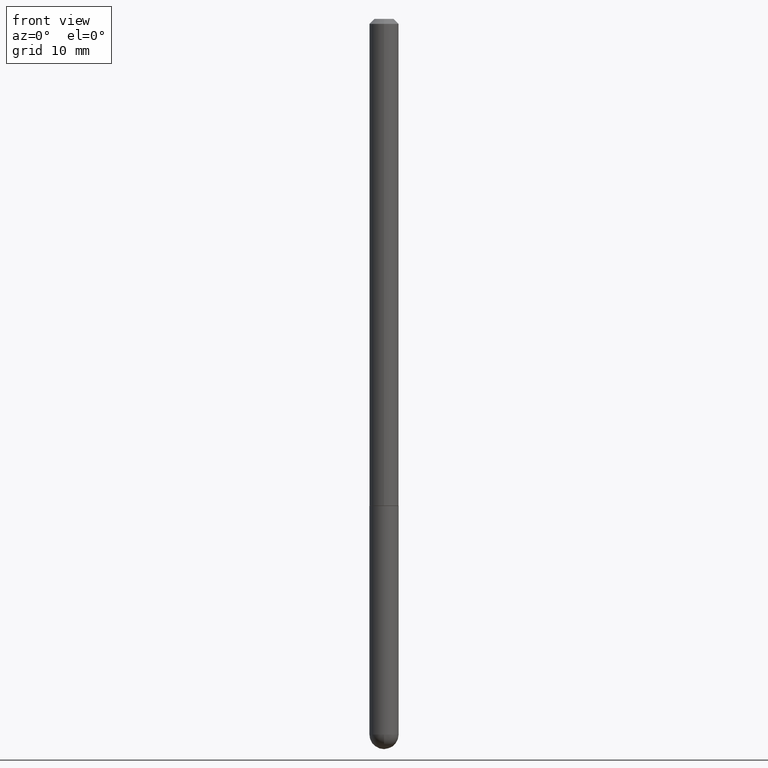
[diagram: clean part render]
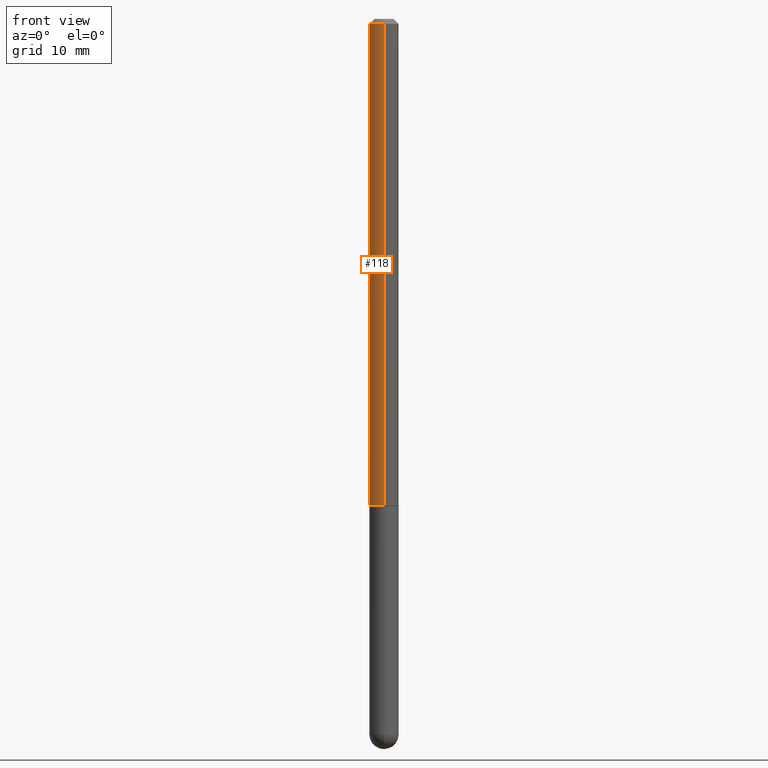
[diagram: same view with one face highlighted and labeled with its STEP entity id]
A machine part, front view. The second image highlights one B-rep face of the part: STEP entity #118.
In plain terms, the highlighted cylindrical surface (edge-blend (fillet) strip) has radius 1.4999 mm, axis along (-0, 0, 1).
Its self-contained STEP definition (entity closure, byte-faithful):
#3 = CYLINDRICAL_SURFACE ( 'NONE', #190, 0.05905000000000010935 ) ;
#12 = ORIENTED_EDGE ( 'NONE', *, *, #275, .F. ) ;
#22 = ORIENTED_EDGE ( 'NONE', *, *, #245, .T. ) ;
#30 = DIRECTION ( 'NONE',  ( -2.452606242276133797E-29, 3.481260124123203654E-15, 1.000000000000000000 ) ) ;
#34 = CIRCLE ( 'NONE', #266, 0.05905000000000001914 ) ;
#51 = CARTESIAN_POINT ( 'NONE',  ( 4.195754854663646379E-16, 0.05904999999999335780, -1.967500000000000027 ) ) ;
#81 = DIRECTION ( 'NONE',  ( -2.452606242276133797E-29, 3.481260124123203654E-15, 1.000000000000000000 ) ) ;
#87 = DIRECTION ( 'NONE',  ( -2.452606242276134078E-29, 3.481260124123204048E-15, 1.000000000000000000 ) ) ;
#112 = VECTOR ( 'NONE', #87, 39.37007874015748143 ) ;
#118 = ADVANCED_FACE ( 'NONE', ( #224 ), #3, .T. ) ;
#125 = CARTESIAN_POINT ( 'NONE',  ( -4.123439461173271448E-16, -0.05905000000000704824, -1.967499999999999361 ) ) ;
#146 = EDGE_LOOP ( 'NONE', ( #149, #22, #342, #12 ) ) ;
#149 = ORIENTED_EDGE ( 'NONE', *, *, #178, .F. ) ;
#150 = DIRECTION ( 'NONE',  ( -2.452606242276133797E-29, 3.481260124123203654E-15, 1.000000000000000000 ) ) ;
#151 = DIRECTION ( 'NONE',  ( -6.982962677686265922E-15, -1.000000000000000000, 4.626330217890353559E-15 ) ) ;
#154 = CARTESIAN_POINT ( 'NONE',  ( -4.051124067684085231E-16, -0.05905000000000008159, -0.01999999999999986511 ) ) ;
#155 = DIRECTION ( 'NONE',  ( -6.982962677686265922E-15, -1.000000000000000000, 3.481260124123203654E-15 ) ) ;
#162 = VERTEX_POINT ( 'NONE', #154 ) ;
#173 = DIRECTION ( 'NONE',  ( -6.982962677686265922E-15, -1.000000000000000000, 3.469747663417776213E-15 ) ) ;
#178 = EDGE_CURVE ( 'NONE', #207, #267, #346, .T. ) ;
#186 = EDGE_CURVE ( 'NONE', #387, #162, #242, .T. ) ;
#190 = AXIS2_PLACEMENT_3D ( 'NONE', #374, #30, #155 ) ;
#203 = CARTESIAN_POINT ( 'NONE',  ( 4.905212484552284025E-31, -6.962520248246431022E-17, -0.02000000000000006981 ) ) ;
#207 = VERTEX_POINT ( 'NONE', #51 ) ;
#224 = FACE_OUTER_BOUND ( 'NONE', #146, .T. ) ;
#242 = LINE ( 'NONE', #244, #294 ) ;
#244 = CARTESIAN_POINT ( 'NONE',  ( -4.123439461173747722E-16, -0.05905000000000010935, 2.055684103294755676E-16 ) ) ;
#245 = EDGE_CURVE ( 'NONE', #207, #387, #376, .T. ) ;
#266 = AXIS2_PLACEMENT_3D ( 'NONE', #203, #150, #173 ) ;
#267 = VERTEX_POINT ( 'NONE', #328 ) ;
#275 = EDGE_CURVE ( 'NONE', #267, #162, #34, .T. ) ;
#279 = DIRECTION ( 'NONE',  ( -2.452606242276134078E-29, 3.481260124123204048E-15, 1.000000000000000000 ) ) ;
#294 = VECTOR ( 'NONE', #279, 39.37007874015748143 ) ;
#310 = CARTESIAN_POINT ( 'NONE',  ( 4.825502781678292621E-29, -6.849379294212400691E-15, -1.967499999999999805 ) ) ;
#312 = CARTESIAN_POINT ( 'NONE',  ( 4.195754854663398874E-16, 0.05905000000000010935, -2.055684103294755676E-16 ) ) ;
#328 = CARTESIAN_POINT ( 'NONE',  ( 4.123439461173745750E-16, 0.05904999999999994975, -0.02000000000000027450 ) ) ;
#342 = ORIENTED_EDGE ( 'NONE', *, *, #186, .T. ) ;
#346 = LINE ( 'NONE', #312, #112 ) ;
#374 = CARTESIAN_POINT ( 'NONE',  ( 0.000000000000000000, 0.000000000000000000, 0.000000000000000000 ) ) ;
#376 = CIRCLE ( 'NONE', #409, 0.05905000000000020649 ) ;
#387 = VERTEX_POINT ( 'NONE', #125 ) ;
#409 = AXIS2_PLACEMENT_3D ( 'NONE', #310, #81, #151 ) ;